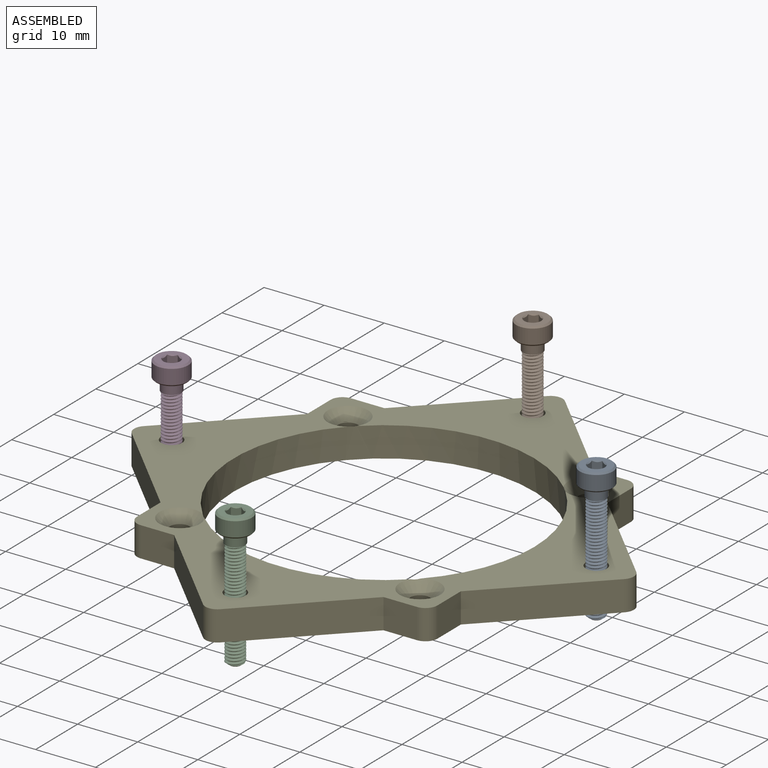
[diagram: assembled view]
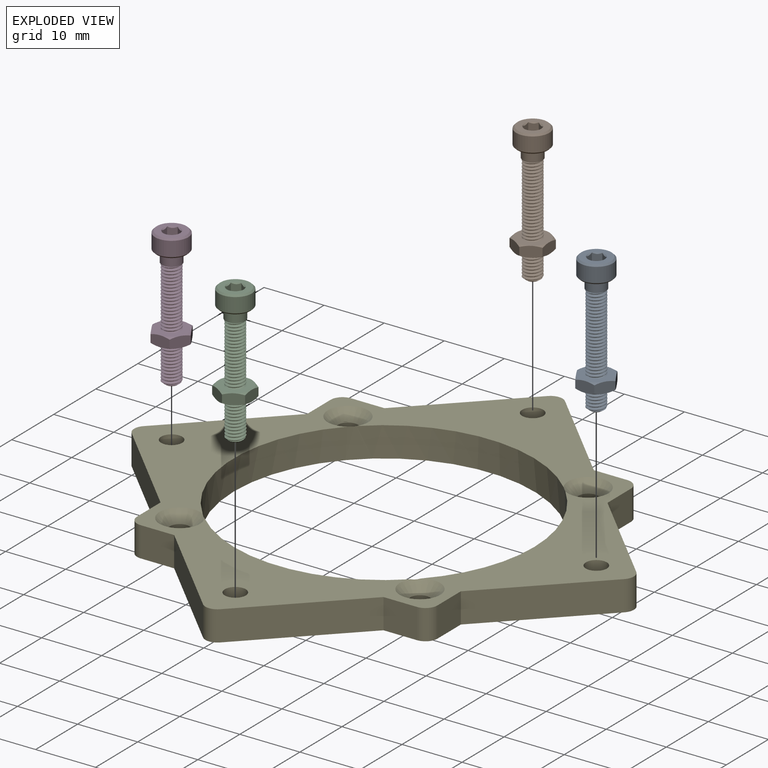
[diagram: exploded view]
GUIDED TOUR — MATED ASSEMBLY WITH SUBASSEMBLIES (Onshape document c32c4f820cddbbeb0b0f44df, AutoMate assembly c32c4f820cddbbeb0b0f44df_1a999598d7298302037ef0e0_8563abc52cc1d183e87581e6_default)

This assembly has 9 component occurrences arranged in 5 top-level units: 1 individual components plus 4 subassemblies (S0, S1, S2, S3). The tour has two levels: first the top level, where each subassembly is treated as one rigid unit; then each subassembly is toured internally in its own section (nesting deeper than one subassembly level is flattened into its subassembly's section).

Components are labeled P0..P8 across the whole record; subassembly units are labeled S0..S3. A mate is a constraint between two units; its type names the relative motion it leaves free:
  CYLINDRICAL — leaves both rotation about and translation along the listed axis free,
  FASTENED — locks the two components together rigidly (no relative motion).
Axis/direction vectors are unit vectors and 'through' points are millimeter coordinates, both in the assembly's world frame.

TOP-LEVEL MATES (between units; each subassembly's internal mates are listed in its own section)
  1. FASTENED "Captive nut": S0 <-> P6, direction (0.000, 0.000, 1.000) through (34.08, 0.39, 13.19) mm
  2. FASTENED "Captive nut 4": S2 <-> P6, direction (0.000, 0.000, 1.000) through (-1.28, -34.97, 13.19) mm
  3. FASTENED "Captive nut 3": S3 <-> P6, direction (0.000, 0.000, 1.000) through (-36.63, 0.39, 13.19) mm
  4. FASTENED "Captive nut 2": S1 <-> P6, direction (0.000, 0.000, 1.000) through (-1.28, 35.75, 13.19) mm

TOP-LEVEL ASSEMBLY ORDER
  1. P6 — the base component [order heuristic]
  2. S0 — core [order heuristic]
  3. S3 — core [order heuristic]
  4. S2 [order verified]
  5. S1 [order verified]
Order-tag legend:
  [order verified] — this step's position reverses a verified removal order: the component was checked to insert without passing through the ones already placed.
  [order heuristic] — the first 3 components form the assembly's core: parts whose collision-free extraction could not be verified, listed in mate-graph order.

Of the 9 component occurrences, 1 carries the full construction recipe — the FeatureScript program that regenerates the part's solid from scratch; the rest are supplied as boundary geometry only. Each toured unit is shown spotlighted twice — assembled, then exploded with a leader line back to its socket (green = recipe-attached component, orange = geometry-only, blue = subassembly unit; the rest desaturated gray).
NOTE — this tour is split across 2 documents so each fits a 32k-token context. This is document 1: the component sections continue in the remaining 1 document, each repeating the header above.
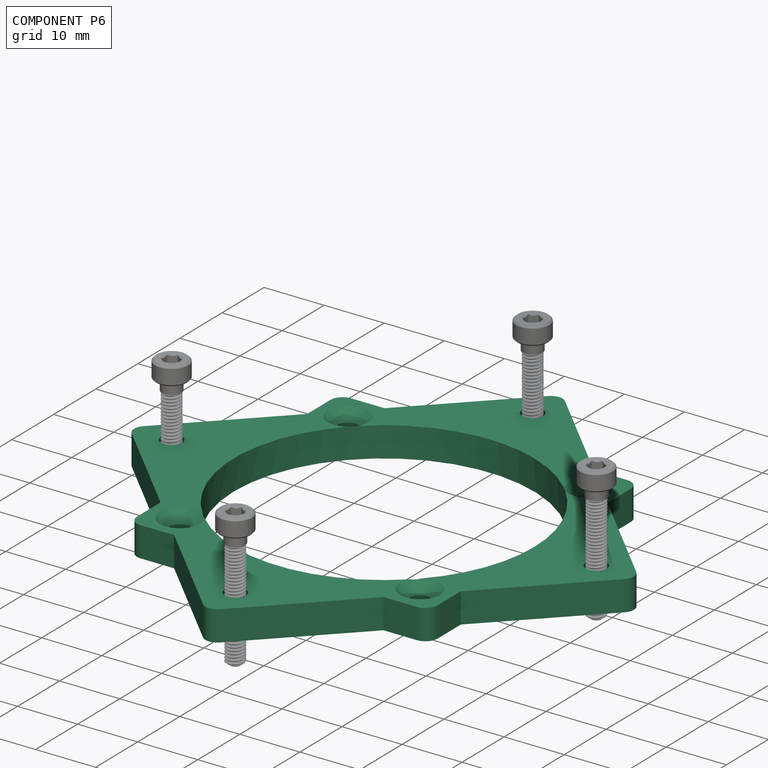
[diagram: component P6 — assembled]
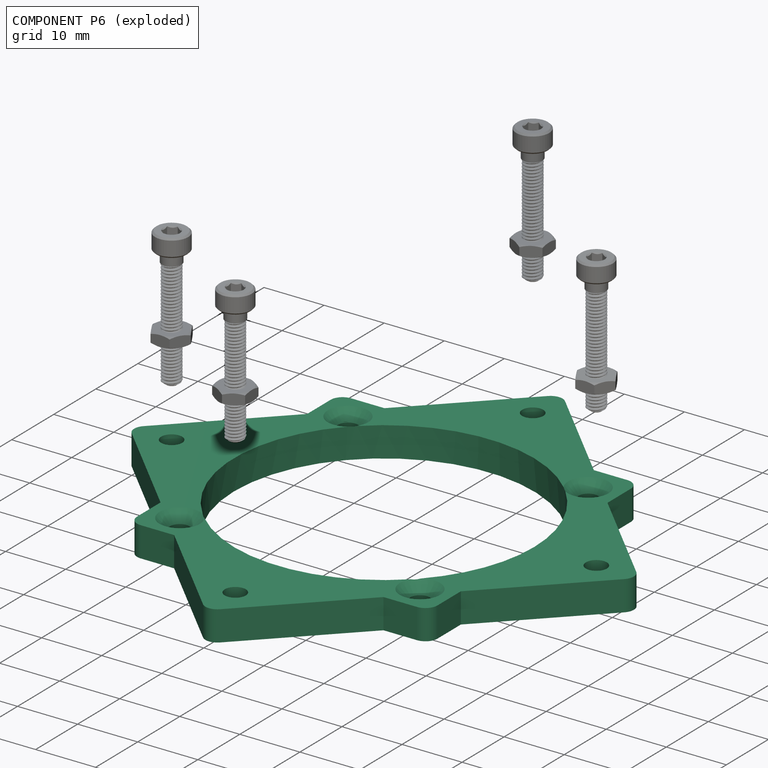
[diagram: component P6 — exploded]
COMPONENT P6 — recipe-attached (CADFS 00194065, mesh-verified: the recipe's output STEP matches this component's geometry to below the mesh-comparison resolution (tessellation chordal tolerance ~0.177 mm)).
Held by: FASTENED mate "Captive nut" to P0; FASTENED mate "Captive nut 4" to P2; FASTENED mate "Captive nut 3" to P5; FASTENED mate "Captive nut 2" to P1.
Construction recipe (FeatureScript — the CAD program that rebuilds this solid; sketch coordinates are in the units given by the * unit suffixes, e.g. mm):

FeatureScript 1540;
import(path : "onshape/std/geometry.fs", version : "1540.0");
import(path : "onshape/std/common.fs", version : "1540.0");
const mm = millimeter;
const VERTEX = EntityType.VERTEX;
const EDGE = EntityType.EDGE;
const FACE = EntityType.FACE;
const BODY = EntityType.BODY;
function v(x, y){return vector(x, y);}
function OD(order){return orderDisambiguation(order);}
function OSD(set){return originalSetDisambiguation(set);}
function TD(topology){return topologyDisambiguation(topology);}
function TDD(query){return trueDependencyDisambiguation(query);}
function sQuery(a, b, c) {return sketchEntityQuery(a, b, c);}

annotation { "Feature Type Name" : "Feature", "Feature Type Description" : "" }
export const myFeature = defineFeature(function(context is Context, id is Id, definition is map)
    precondition{}
    {
        {
            assignVariable(context, id + "F0", {"name" : "plate_thickness", "anyValue" : 5});
        }
        {
            var Q0;
            Q0=qCreatedBy(makeId("Top.planeOp"),FACE);
            var sketch = newSketch(context, id + "F1", { "sketchPlane" : qUnion([Q0])});
            skLineSegment(sketch, "E0.bottom", {"start": v(-41.01, 1.41) * mm, "end": v(-1.41, 41.01) * mm});
            skLineSegment(sketch, "E0.top", {"start": v(1.41, -41.01) * mm, "end": v(41.01, -1.41) * mm});
            skLineSegment(sketch, "E0.left", {"start": v(-41.01, -1.41) * mm, "end": v(-1.41, -41.01) * mm});
            skLineSegment(sketch, "E0.right", {"start": v(1.41, 41.01) * mm, "end": v(41.01, 1.41) * mm});
            skPoint(sketch, "E0.middle", {"position": v(0, 0) * mm});
            skPoint(sketch, "E1.endSnap0", {"position": v(-21.21, 21.21) * mm});
            skPoint(sketch, "E2.endSnap0", {"position": v(21.21, 21.21) * mm});
            skCircle(sketch, "E3", {"center": v(0, -35.36) * mm, "radius": 1.75 * mm});
            skLineSegment(sketch, "E4", {"start": v(0, -42.43) * mm, "end": v(0, 42.43) * mm, "construction": true});
            skLineSegment(sketch, "E5", {"start": v(-42.43, 0) * mm, "end": v(42.43, 0) * mm, "construction": true});
            skPoint(sketch, "E6.visualSharp", {"position": v(0, -42.43) * mm});
            skArc(sketch, "E7.filletArc", {"start": v(-1.41, -41.01) * mm, "mid": v(0, -41.6) * mm, "end": v(1.41, -41.01) * mm});
            skPoint(sketch, "E8.visualSharp", {"position": v(42.43, 0) * mm});
            skArc(sketch, "E8.filletArc", {"start": v(41.01, -1.41) * mm, "mid": v(41.6, 0) * mm, "end": v(41.01, 1.41) * mm});
            skPoint(sketch, "E9.visualSharp", {"position": v(0, 42.43) * mm});
            skArc(sketch, "E9.filletArc", {"start": v(1.41, 41.01) * mm, "mid": v(0, 41.6) * mm, "end": v(-1.41, 41.01) * mm});
            skPoint(sketch, "E10.visualSharp", {"position": v(-42.43, 0) * mm});
            skArc(sketch, "E10.filletArc", {"start": v(-41.01, 1.41) * mm, "mid": v(-41.6, 0) * mm, "end": v(-41.01, -1.41) * mm});
            skLineSegment(sketch, "E11", {"start": v(21.21, -21.21) * mm, "end": v(-21.21, 21.21) * mm, "construction": true});
            skLineSegment(sketch, "E12", {"start": v(21.21, 21.21) * mm, "end": v(-21.21, -21.21) * mm, "construction": true});
            skCircle(sketch, "E13.MirrorC", {"center": v(-35.36, 0) * mm, "radius": 1.75 * mm});
            skCircle(sketch, "E14.MirrorC", {"center": v(0, 35.36) * mm, "radius": 1.75 * mm});
            skCircle(sketch, "E15.MirrorC", {"center": v(35.36, 0) * mm, "radius": 1.75 * mm});
            skLineSegment(sketch, "E16", {"start": v(0, -35.36) * mm, "end": v(-3.54, -38.9) * mm, "construction": true});
            skSolve(sketch);
        }
        {
            var Q0;
            Q0=makeQuery(id+"F1.imprint","IMPRINT",FACE,{"disambiguationData":[TD([[makeQuery(id+"F1.imprint","IMPRINT",EDGE,{"derivedFrom":sQuery(id+"F1.wireOp",EDGE,"E0.bottom")}),-1.0]])]});
            extrude(context, id + "F2", {"entities" : qUnion([Q0]), "depth" : getVariable(context, 'plate_thickness') * mm});
        }
        {
            var Q0;
            Q0=qCreatedBy(makeId("Top.planeOp"),FACE);
            var sketch = newSketch(context, id + "F3", { "sketchPlane" : qUnion([Q0])});
            skLineSegment(sketch, "E17.bottom", {"start": v(-23, 25) * mm, "end": v(23, 25) * mm});
            skLineSegment(sketch, "E17.top", {"start": v(-23, -25) * mm, "end": v(23, -25) * mm});
            skLineSegment(sketch, "E17.left", {"start": v(-25, 23) * mm, "end": v(-25, -23) * mm});
            skLineSegment(sketch, "E17.right", {"start": v(25, 23) * mm, "end": v(25, -23) * mm});
            skPoint(sketch, "E17.middle", {"position": v(0, 0) * mm});
            skPoint(sketch, "E18.endSnap0", {"position": v(0, 25) * mm});
            skPoint(sketch, "E19.endSnap0", {"position": v(25, 0) * mm});
            skCircle(sketch, "E20", {"center": v(-20, -20) * mm, "radius": 1.75 * mm});
            skLineSegment(sketch, "E21", {"start": v(-25, -25) * mm, "end": v(25, 25) * mm, "construction": true});
            skLineSegment(sketch, "E22", {"start": v(-25, 25) * mm, "end": v(25, -25) * mm, "construction": true});
            skPoint(sketch, "E23.visualSharp", {"position": v(-25, -25) * mm});
            skArc(sketch, "E24.filletArc", {"start": v(-25, -23) * mm, "mid": v(-24.41, -24.41) * mm, "end": v(-23, -25) * mm});
            skPoint(sketch, "E25.visualSharp", {"position": v(25, -25) * mm});
            skArc(sketch, "E25.filletArc", {"start": v(23, -25) * mm, "mid": v(24.41, -24.41) * mm, "end": v(25, -23) * mm});
            skPoint(sketch, "E26.visualSharp", {"position": v(25, 25) * mm});
            skArc(sketch, "E26.filletArc", {"start": v(25, 23) * mm, "mid": v(24.41, 24.41) * mm, "end": v(23, 25) * mm});
            skPoint(sketch, "E27.visualSharp", {"position": v(-25, 25) * mm});
            skArc(sketch, "E27.filletArc", {"start": v(-23, 25) * mm, "mid": v(-24.41, 24.41) * mm, "end": v(-25, 23) * mm});
            skCircle(sketch, "E28.MirrorC", {"center": v(20, -20) * mm, "radius": 1.75 * mm});
            skCircle(sketch, "E29.MirrorC", {"center": v(20, 20) * mm, "radius": 1.75 * mm});
            skCircle(sketch, "E30.MirrorC", {"center": v(-20, 20) * mm, "radius": 1.75 * mm});
            skSolve(sketch);
        }
        {
            var Q0;
            Q0 = qSketchRegion(id + "F3", true);
            extrude(context, id + "F4", {"entities" : qUnion([Q0]), "depth" : getVariable(context, 'plate_thickness') * mm});
        }
        {
            var Q0;
            Q0=makeQuery(id+"F4.opExtrude","SWEPT_BODY",BODY,{"disambiguationData":[OSD([sQuery(id+"F3.wireOp",EDGE,"E17.bottom"),sQuery(id+"F3.wireOp",EDGE,"E17.top"),sQuery(id+"F3.wireOp",EDGE,"E17.left"),sQuery(id+"F3.wireOp",EDGE,"E17.right"),sQuery(id+"F3.wireOp",EDGE,"E20"),sQuery(id+"F3.wireOp",EDGE,"56bc1b40-8556-4916-879a-06b11f969edb"),sQuery(id+"F3.wireOp",EDGE,"E24.filletArc"),sQuery(id+"F3.wireOp",EDGE,"E25.filletArc"),sQuery(id+"F3.wireOp",EDGE,"E26.filletArc"),sQuery(id+"F3.wireOp",EDGE,"E27.filletArc"),sQuery(id+"F3.wireOp",EDGE,"E28.MirrorC"),sQuery(id+"F3.wireOp",EDGE,"E29.MirrorC"),sQuery(id+"F3.wireOp",EDGE,"E30.MirrorC")])]});
            var Q1;
            Q1=makeQuery(id+"F2.opExtrude","SWEPT_BODY",BODY,{"disambiguationData":[OSD([sQuery(id+"F1.wireOp",EDGE,"E0.bottom"),sQuery(id+"F1.wireOp",EDGE,"E0.top"),sQuery(id+"F1.wireOp",EDGE,"E0.left"),sQuery(id+"F1.wireOp",EDGE,"E0.right"),sQuery(id+"F1.wireOp",EDGE,"E3"),sQuery(id+"F1.wireOp",EDGE,"ej8KbIMe-PWYS-cAjW-iybb-MyuX8oysgDMn"),sQuery(id+"F1.wireOp",EDGE,"E7.filletArc"),sQuery(id+"F1.wireOp",EDGE,"E8.filletArc"),sQuery(id+"F1.wireOp",EDGE,"E9.filletArc"),sQuery(id+"F1.wireOp",EDGE,"E10.filletArc"),sQuery(id+"F1.wireOp",EDGE,"1b3d5ee1-3fd6-4c55-bd02-d0c0132213120.MirrorC"),sQuery(id+"F1.wireOp",EDGE,"01bf5ec6-f76a-4ebe-8428-037c4d78945e0.MirrorC"),sQuery(id+"F1.wireOp",EDGE,"01bf5ec6-f76a-4ebe-8428-037c4d78945e1.MirrorC")])]});
            booleanBodies(context, id + "F5", {"operationType" : BooleanOperationType.UNION, "tools" : qUnion([Q0, Q1])});
        }
        {
            var Q0;
            Q0=makeQuery(id+"F5.opBoolean","MERGE",FACE,{"derivedFrom":[makeQuery(id+"F2.opExtrude","CAP_FACE",FACE,{"disambiguationData":[OSD([sQuery(id+"F1.wireOp",EDGE,"E0.bottom"),sQuery(id+"F1.wireOp",EDGE,"E0.top"),sQuery(id+"F1.wireOp",EDGE,"E0.left"),sQuery(id+"F1.wireOp",EDGE,"E0.right"),sQuery(id+"F1.wireOp",EDGE,"E3"),sQuery(id+"F1.wireOp",EDGE,"E7.filletArc"),sQuery(id+"F1.wireOp",EDGE,"E8.filletArc"),sQuery(id+"F1.wireOp",EDGE,"E9.filletArc"),sQuery(id+"F1.wireOp",EDGE,"E10.filletArc"),sQuery(id+"F1.wireOp",EDGE,"E13.MirrorC"),sQuery(id+"F1.wireOp",EDGE,"E14.MirrorC"),sQuery(id+"F1.wireOp",EDGE,"E15.MirrorC")])],"isStart":false}),makeQuery(id+"F4.opExtrude","CAP_FACE",FACE,{"disambiguationData":[OSD([sQuery(id+"F3.wireOp",EDGE,"E17.bottom"),sQuery(id+"F3.wireOp",EDGE,"E17.top"),sQuery(id+"F3.wireOp",EDGE,"E17.left"),sQuery(id+"F3.wireOp",EDGE,"E17.right"),sQuery(id+"F3.wireOp",EDGE,"E20"),sQuery(id+"F3.wireOp",EDGE,"E24.filletArc"),sQuery(id+"F3.wireOp",EDGE,"E25.filletArc"),sQuery(id+"F3.wireOp",EDGE,"E26.filletArc"),sQuery(id+"F3.wireOp",EDGE,"E27.filletArc"),sQuery(id+"F3.wireOp",EDGE,"E28.MirrorC"),sQuery(id+"F3.wireOp",EDGE,"E29.MirrorC"),sQuery(id+"F3.wireOp",EDGE,"E30.MirrorC")])],"isStart":false})]});
            var sketch = newSketch(context, id + "F6", { "sketchPlane" : qUnion([Q0])});
            skCircle(sketch, "E31", {"center": v(0, 0) * mm, "radius": 25 * mm});
            skSolve(sketch);
        }
        {
            var Q0;
            Q0=makeQuery(id+"F6.imprint","IMPRINT",FACE,{"disambiguationData":[TD([[makeQuery(id+"F6.imprint","IMPRINT",EDGE,{"derivedFrom":sQuery(id+"F6.wireOp",EDGE,"E31")}),1.0]])]});
            extrude(context, id + "F7", {"entities" : qUnion([Q0]), "operationType" : NewBodyOperationType.REMOVE, "endBound" : BoundingType.THROUGH_ALL, "oppositeDirection" : true, "depth" : 25 * mm});
        }
        {
            var Q0;
            Q0=makeQuery(id+"F4.opExtrude","SWEPT_BODY",BODY,{"disambiguationData":[OSD([sQuery(id+"F3.wireOp",EDGE,"E17.bottom"),sQuery(id+"F3.wireOp",EDGE,"E17.top"),sQuery(id+"F3.wireOp",EDGE,"E17.left"),sQuery(id+"F3.wireOp",EDGE,"E17.right"),sQuery(id+"F3.wireOp",EDGE,"E20"),sQuery(id+"F3.wireOp",EDGE,"56bc1b40-8556-4916-879a-06b11f969edb"),sQuery(id+"F3.wireOp",EDGE,"E24.filletArc"),sQuery(id+"F3.wireOp",EDGE,"E25.filletArc"),sQuery(id+"F3.wireOp",EDGE,"E26.filletArc"),sQuery(id+"F3.wireOp",EDGE,"E27.filletArc"),sQuery(id+"F3.wireOp",EDGE,"E28.MirrorC"),sQuery(id+"F3.wireOp",EDGE,"E29.MirrorC"),sQuery(id+"F3.wireOp",EDGE,"E30.MirrorC")])]});
            transform(context, id + "F8", {"entities" : qUnion([Q0]), "transformType" : TransformType.TRANSLATION_3D, "dx" : 0 * mm, "dy" : 0 * mm, "dz" : -5 * mm, "makeCopy" : false});
        }
        {
            var Q0;
            Q0=sQuery(id+"F3.wireOp",VERTEX,"E20.center");
            var Q1;
            Q1=sQuery(id+"F3.wireOp",VERTEX,"E29.MirrorC.center");
            var Q2;
            Q2=sQuery(id+"F3.wireOp",VERTEX,"E28.MirrorC.center");
            var Q3;
            Q3=sQuery(id+"F3.wireOp",VERTEX,"E30.MirrorC.center");
            var Q4;
            Q4=makeQuery(id+"F4.opExtrude","SWEPT_BODY",BODY,{"disambiguationData":[OSD([sQuery(id+"F3.wireOp",EDGE,"E17.bottom"),sQuery(id+"F3.wireOp",EDGE,"E17.top"),sQuery(id+"F3.wireOp",EDGE,"E17.left"),sQuery(id+"F3.wireOp",EDGE,"E17.right"),sQuery(id+"F3.wireOp",EDGE,"E20"),sQuery(id+"F3.wireOp",EDGE,"56bc1b40-8556-4916-879a-06b11f969edb"),sQuery(id+"F3.wireOp",EDGE,"E24.filletArc"),sQuery(id+"F3.wireOp",EDGE,"E25.filletArc"),sQuery(id+"F3.wireOp",EDGE,"E26.filletArc"),sQuery(id+"F3.wireOp",EDGE,"E27.filletArc"),sQuery(id+"F3.wireOp",EDGE,"E28.MirrorC"),sQuery(id+"F3.wireOp",EDGE,"E29.MirrorC"),sQuery(id+"F3.wireOp",EDGE,"E30.MirrorC")])]});
            hole(context, id + "F9", {"style" : HoleStyle.C_SINK, "endStyle" : HoleEndStyle.THROUGH, "standardTappedOrClearance" : lookupTablePath({ "standard" : "ISO", "fit" : "Normal", "size" : "M3", "type" : "Clearance" }), "standardBlindInLast" : lookupTablePath({ "fit" : "Standard", "standard" : "ISO", "size" : "M3", "type" : "Clearance" }), "holeDiameter" : 3.3 * mm, "cSinkDiameter" : 6.72 * mm, "cSinkAngle" : 90 * degree, "locations" : qUnion([Q0, Q1, Q2, Q3]), "scope" : qUnion([Q4]), "isTappedThrough" : true});
        }
        {
            var Q0;
            Q0=makeQuery(id+"F5.opBoolean","MERGE",FACE,{"derivedFrom":[makeQuery(id+"F2.opExtrude","CAP_FACE",FACE,{"disambiguationData":[OSD([sQuery(id+"F1.wireOp",EDGE,"E0.bottom"),sQuery(id+"F1.wireOp",EDGE,"E0.top"),sQuery(id+"F1.wireOp",EDGE,"E0.left"),sQuery(id+"F1.wireOp",EDGE,"E0.right"),sQuery(id+"F1.wireOp",EDGE,"E3"),sQuery(id+"F1.wireOp",EDGE,"ej8KbIMe-PWYS-cAjW-iybb-MyuX8oysgDMn"),sQuery(id+"F1.wireOp",EDGE,"E7.filletArc"),sQuery(id+"F1.wireOp",EDGE,"E8.filletArc"),sQuery(id+"F1.wireOp",EDGE,"E9.filletArc"),sQuery(id+"F1.wireOp",EDGE,"E10.filletArc"),sQuery(id+"F1.wireOp",EDGE,"1b3d5ee1-3fd6-4c55-bd02-d0c0132213120.MirrorC"),sQuery(id+"F1.wireOp",EDGE,"01bf5ec6-f76a-4ebe-8428-037c4d78945e0.MirrorC"),sQuery(id+"F1.wireOp",EDGE,"01bf5ec6-f76a-4ebe-8428-037c4d78945e1.MirrorC")])],"isStart":true}),makeQuery(id+"F4.opExtrude","CAP_FACE",FACE,{"disambiguationData":[OSD([sQuery(id+"F3.wireOp",EDGE,"E17.bottom"),sQuery(id+"F3.wireOp",EDGE,"E17.top"),sQuery(id+"F3.wireOp",EDGE,"E17.left"),sQuery(id+"F3.wireOp",EDGE,"E17.right"),sQuery(id+"F3.wireOp",EDGE,"E20"),sQuery(id+"F3.wireOp",EDGE,"56bc1b40-8556-4916-879a-06b11f969edb"),sQuery(id+"F3.wireOp",EDGE,"E24.filletArc"),sQuery(id+"F3.wireOp",EDGE,"E25.filletArc"),sQuery(id+"F3.wireOp",EDGE,"E26.filletArc"),sQuery(id+"F3.wireOp",EDGE,"E27.filletArc"),sQuery(id+"F3.wireOp",EDGE,"E28.MirrorC"),sQuery(id+"F3.wireOp",EDGE,"E29.MirrorC"),sQuery(id+"F3.wireOp",EDGE,"E30.MirrorC")])],"isStart":true})]});
            var sketch = newSketch(context, id + "F10", { "sketchPlane" : qUnion([Q0])});
            skCircle(sketch, "E32.cCircle", {"center": v(35.36, 0) * mm, "radius": 3.38 * mm, "construction": true});
            skLineSegment(sketch, "E32.0", {"start": v(33.67, 2.92) * mm, "end": v(37.04, 2.92) * mm});
            skLineSegment(sketch, "E32.1", {"start": v(37.04, 2.92) * mm, "end": v(38.73, 0) * mm});
            skLineSegment(sketch, "E32.2", {"start": v(38.73, 0) * mm, "end": v(37.04, -2.92) * mm});
            skLineSegment(sketch, "E32.3", {"start": v(37.04, -2.92) * mm, "end": v(33.67, -2.92) * mm});
            skLineSegment(sketch, "E32.4", {"start": v(33.67, -2.92) * mm, "end": v(31.98, 0) * mm});
            skLineSegment(sketch, "E32.5", {"start": v(31.98, 0) * mm, "end": v(33.67, 2.92) * mm});
            skLineSegment(sketch, "E33.MirrorCS", {"start": v(2.92, -37.04) * mm, "end": v(2.92, -33.67) * mm});
            skCircle(sketch, "E34.MirrorC", {"center": v(0, -35.36) * mm, "radius": 3.38 * mm, "construction": true});
            skLineSegment(sketch, "E35.MirrorCS", {"start": v(-2.92, -33.67) * mm, "end": v(-2.92, -37.04) * mm});
            skLineSegment(sketch, "E36.MirrorCS", {"start": v(-2.92, -37.04) * mm, "end": v(0, -38.73) * mm});
            skLineSegment(sketch, "E37.MirrorCS", {"start": v(0, -38.73) * mm, "end": v(2.92, -37.04) * mm});
            skLineSegment(sketch, "E38.MirrorCS", {"start": v(2.92, -33.67) * mm, "end": v(0, -31.98) * mm});
            skLineSegment(sketch, "E39.MirrorCS", {"start": v(0, -31.98) * mm, "end": v(-2.92, -33.67) * mm});
            skLineSegment(sketch, "E40.MirrorCS", {"start": v(-37.04, -2.92) * mm, "end": v(-38.73, 0) * mm});
            skLineSegment(sketch, "E41.MirrorCS", {"start": v(-37.04, 2.92) * mm, "end": v(-33.67, 2.92) * mm});
            skLineSegment(sketch, "E42.MirrorCS", {"start": v(0, 31.98) * mm, "end": v(2.92, 33.67) * mm});
            skLineSegment(sketch, "E43.MirrorCS", {"start": v(2.92, 33.67) * mm, "end": v(2.92, 37.04) * mm});
            skLineSegment(sketch, "E44.MirrorCS", {"start": v(-31.98, 0) * mm, "end": v(-33.67, -2.92) * mm});
            skLineSegment(sketch, "E45.MirrorCS", {"start": v(0, 38.73) * mm, "end": v(-2.92, 37.04) * mm});
            skLineSegment(sketch, "E46.MirrorCS", {"start": v(-38.73, 0) * mm, "end": v(-37.04, 2.92) * mm});
            skLineSegment(sketch, "E47.MirrorCS", {"start": v(2.92, 37.04) * mm, "end": v(0, 38.73) * mm});
            skLineSegment(sketch, "E48.MirrorCS", {"start": v(-2.92, 37.04) * mm, "end": v(-2.92, 33.67) * mm});
            skLineSegment(sketch, "E49.MirrorCS", {"start": v(-33.67, 2.92) * mm, "end": v(-31.98, 0) * mm});
            skCircle(sketch, "E50.MirrorC", {"center": v(-35.36, 0) * mm, "radius": 3.38 * mm, "construction": true});
            skCircle(sketch, "E51.MirrorC", {"center": v(0, 35.36) * mm, "radius": 3.38 * mm, "construction": true});
            skLineSegment(sketch, "E52.MirrorCS", {"start": v(-2.92, 33.67) * mm, "end": v(0, 31.98) * mm});
            skLineSegment(sketch, "E53.MirrorCS", {"start": v(-33.67, -2.92) * mm, "end": v(-37.04, -2.92) * mm});
            skSolve(sketch);
        }
        {
            var Q0;
            {var subQ14=sQuery(id+"F10.wireOp",EDGE,"E32.0");Q0=makeQuery(id+"F10.imprint","IMPRINT",FACE,{"disambiguationData":[TD([[makeQuery(id+"F10.imprint","IMPRINT",EDGE,{"derivedFrom":subQ14}),-1.0]])]});}
            var Q1;
            Q1=makeQuery(id+"F10.imprint","IMPRINT",FACE,{"disambiguationData":[TD([[makeQuery(id+"F10.imprint","IMPRINT",EDGE,{"derivedFrom":sQuery(id+"F10.wireOp",EDGE,"E42.MirrorCS")}),1.0]])]});
            var Q2;
            {var subQ21=sQuery(id+"F10.wireOp",EDGE,"E35.MirrorCS");Q2=makeQuery(id+"F10.imprint","IMPRINT",FACE,{"disambiguationData":[TD([[makeQuery(id+"F10.imprint","IMPRINT",EDGE,{"derivedFrom":subQ21}),1.0]])]});}
            var Q3;
            Q3=makeQuery(id+"F10.imprint","IMPRINT",FACE,{"disambiguationData":[TD([[makeQuery(id+"F10.imprint","IMPRINT",EDGE,{"derivedFrom":sQuery(id+"F10.wireOp",EDGE,"E44.MirrorCS")}),-1.0]])]});
            extrude(context, id + "F11", {"entities" : qUnion([Q0, Q1, Q2, Q3]), "operationType" : NewBodyOperationType.REMOVE, "oppositeDirection" : true, "depth" : 2.5 * mm});
        }
    });
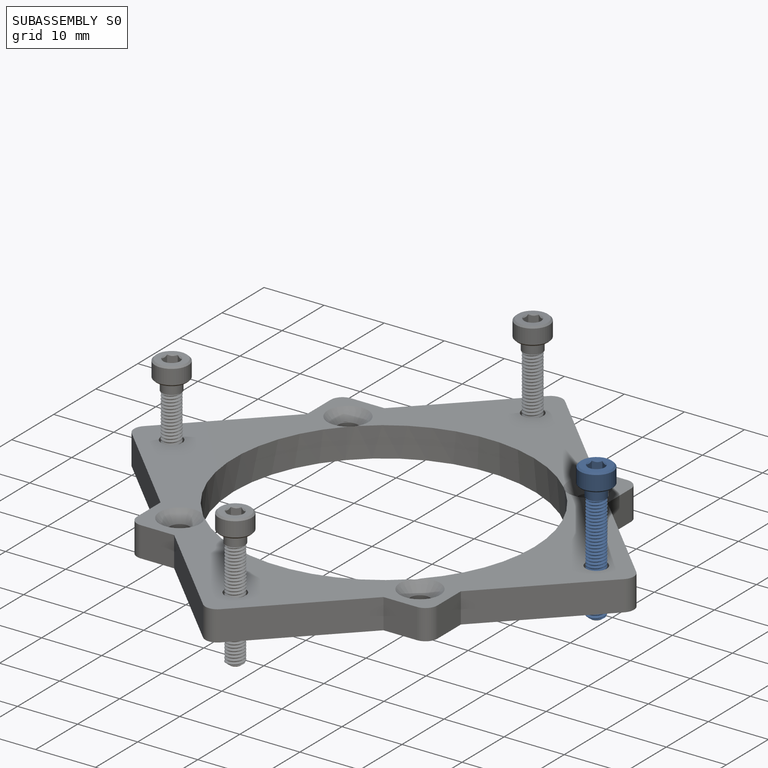
[diagram: subassembly S0 — assembled]
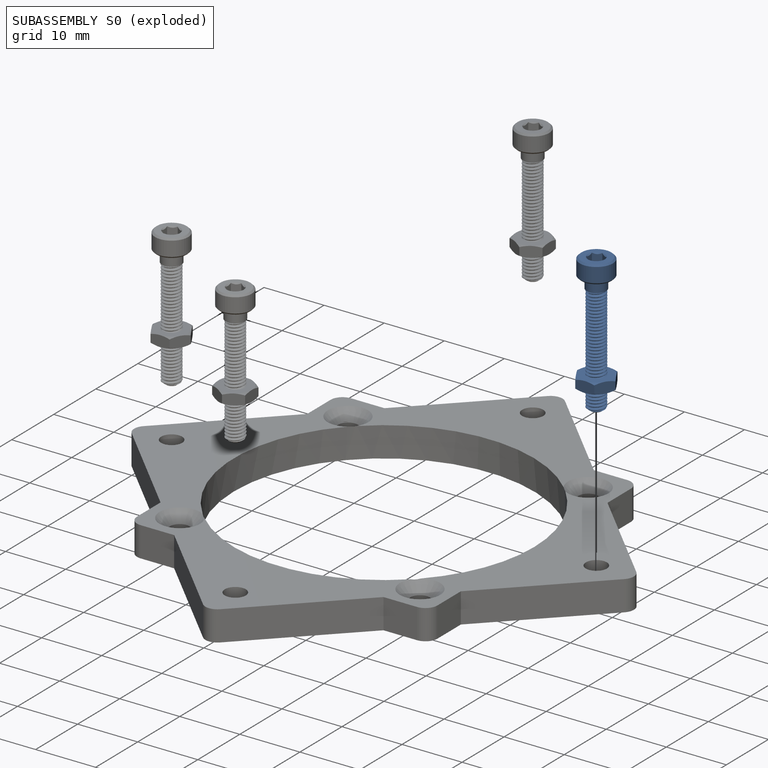
[diagram: subassembly S0 — exploded]
SUBASSEMBLY S0 — 2 components (P0, P4), of which 0 recipe-attached; toured below.
Held by: FASTENED mate "Captive nut" to P6.
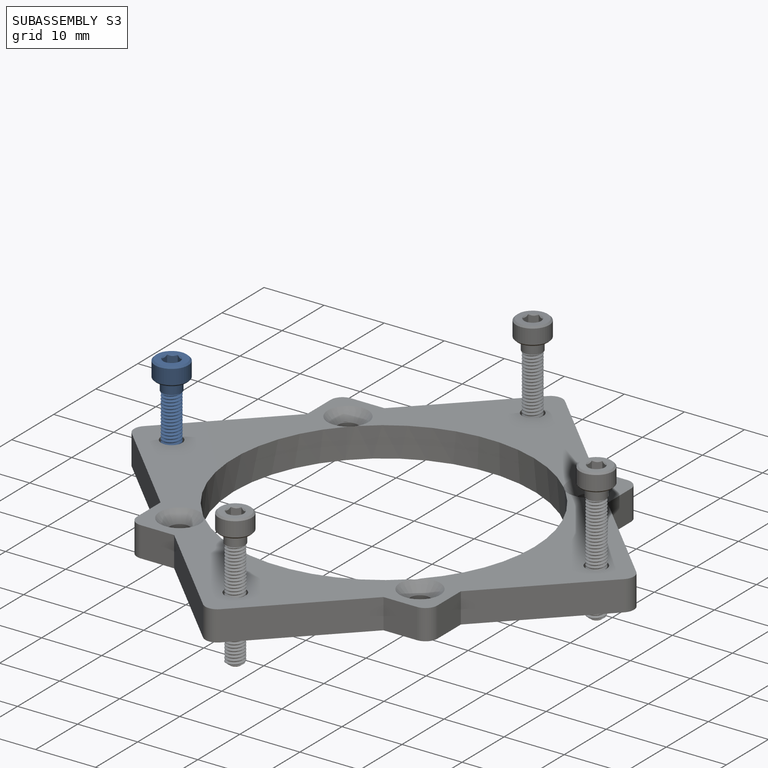
[diagram: subassembly S3 — assembled]
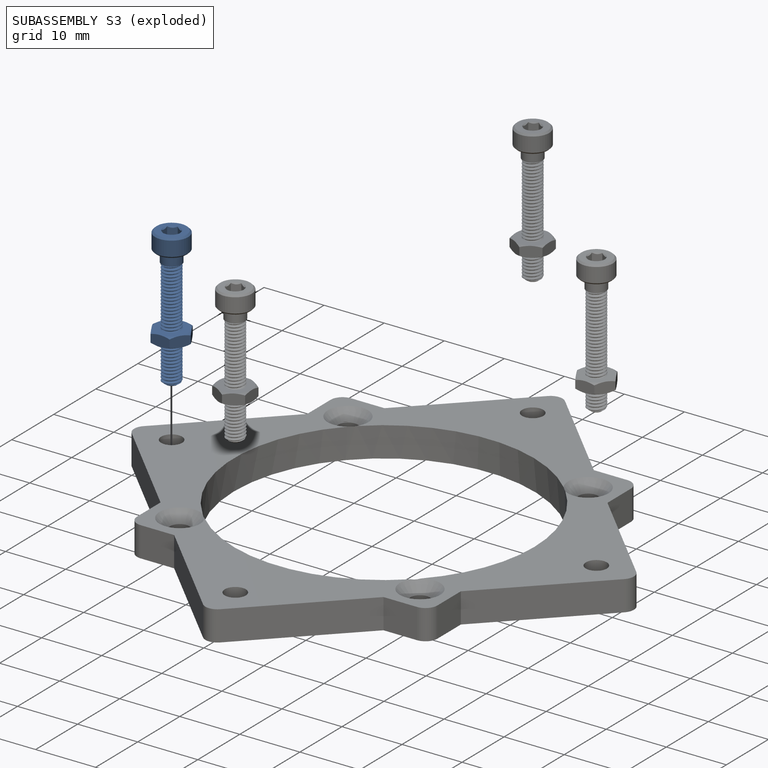
[diagram: subassembly S3 — exploded]
SUBASSEMBLY S3 — 2 components (P5, P8), of which 0 recipe-attached; toured below.
Held by: FASTENED mate "Captive nut 3" to P6.
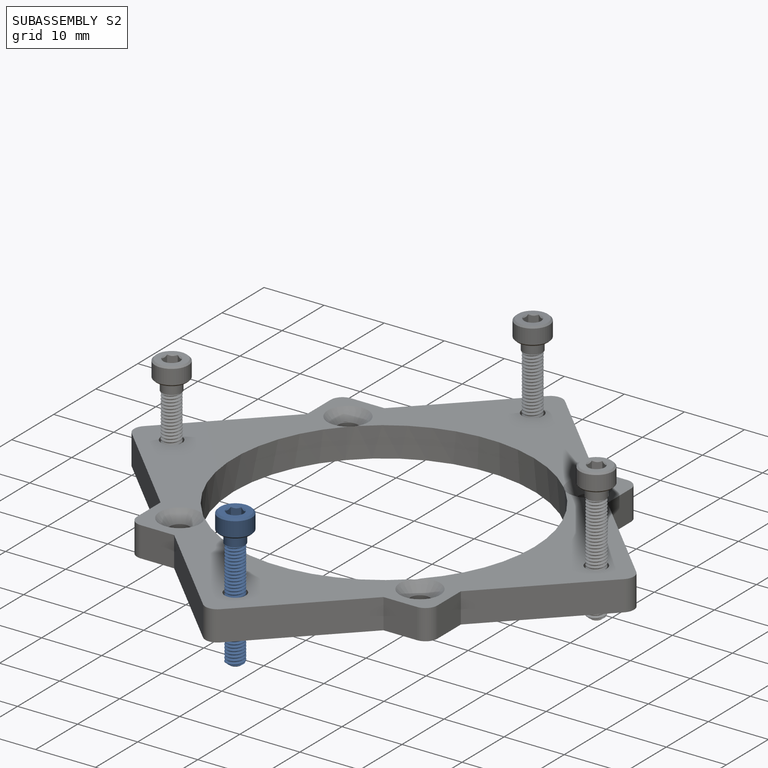
[diagram: subassembly S2 — assembled]
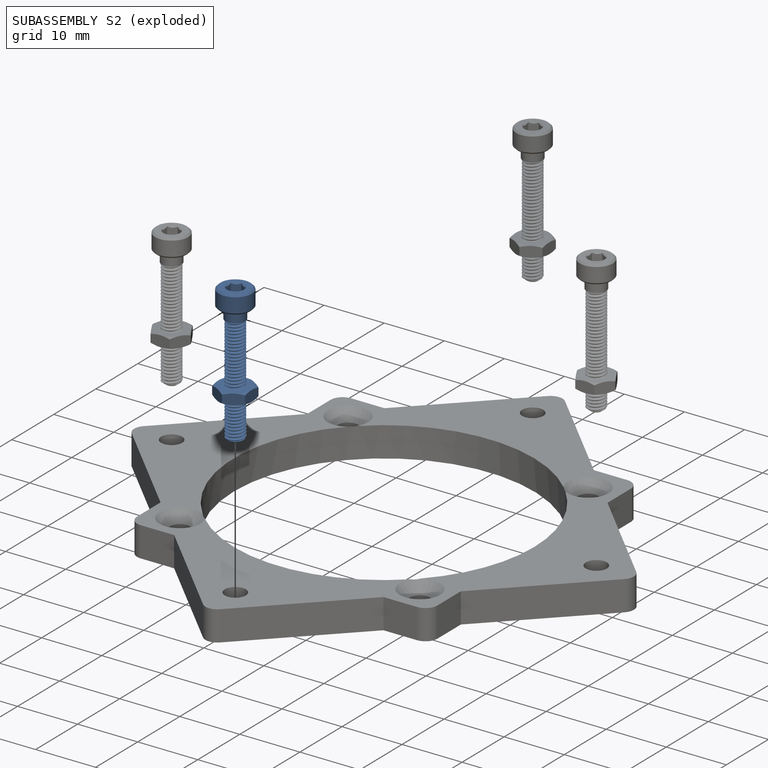
[diagram: subassembly S2 — exploded]
SUBASSEMBLY S2 — 2 components (P2, P7), of which 0 recipe-attached; toured below.
Held by: FASTENED mate "Captive nut 4" to P6.
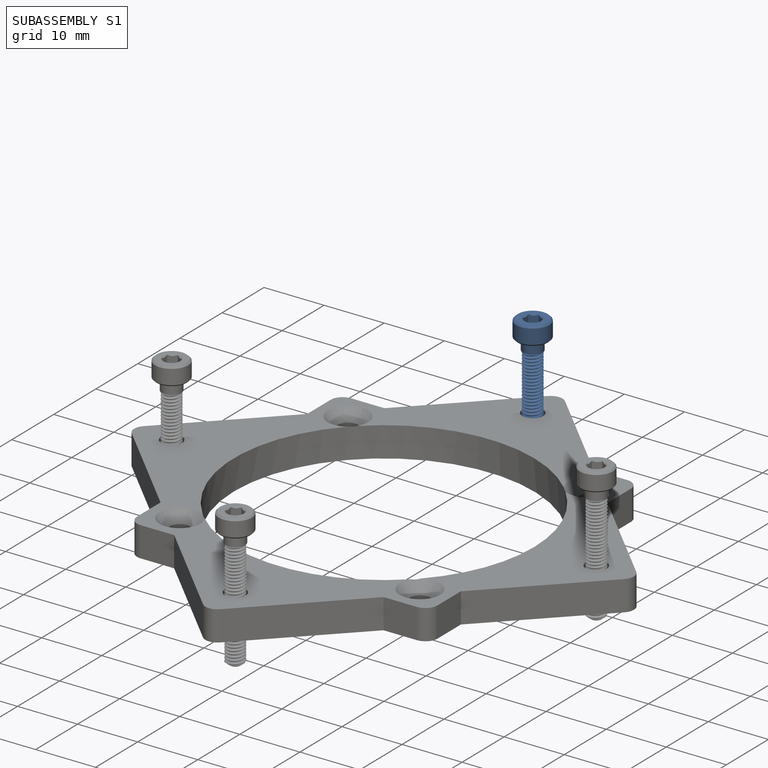
[diagram: subassembly S1 — assembled]
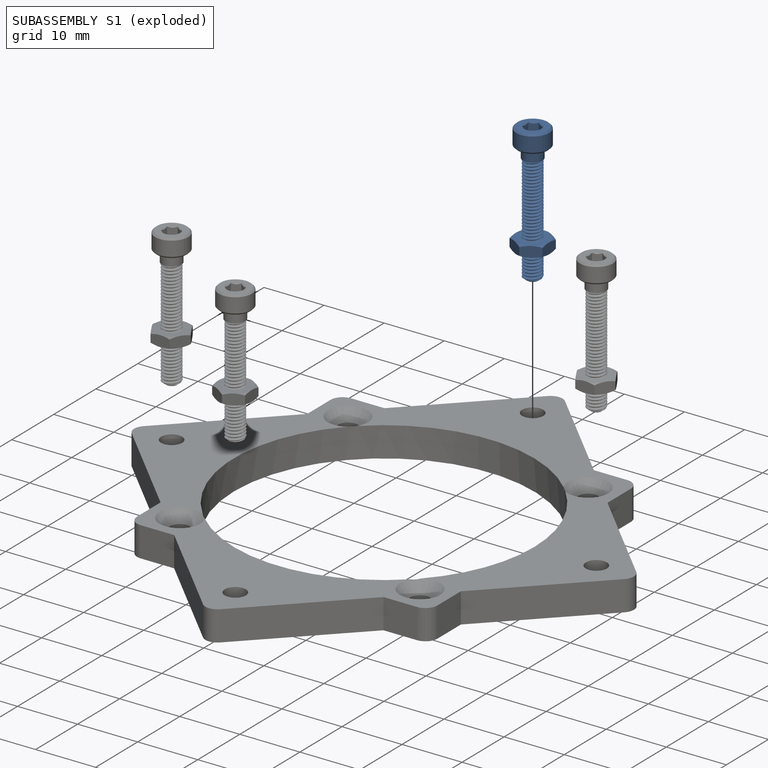
[diagram: subassembly S1 — exploded]
SUBASSEMBLY S1 — 2 components (P1, P3), of which 0 recipe-attached; toured below.
Held by: FASTENED mate "Captive nut 2" to P6.
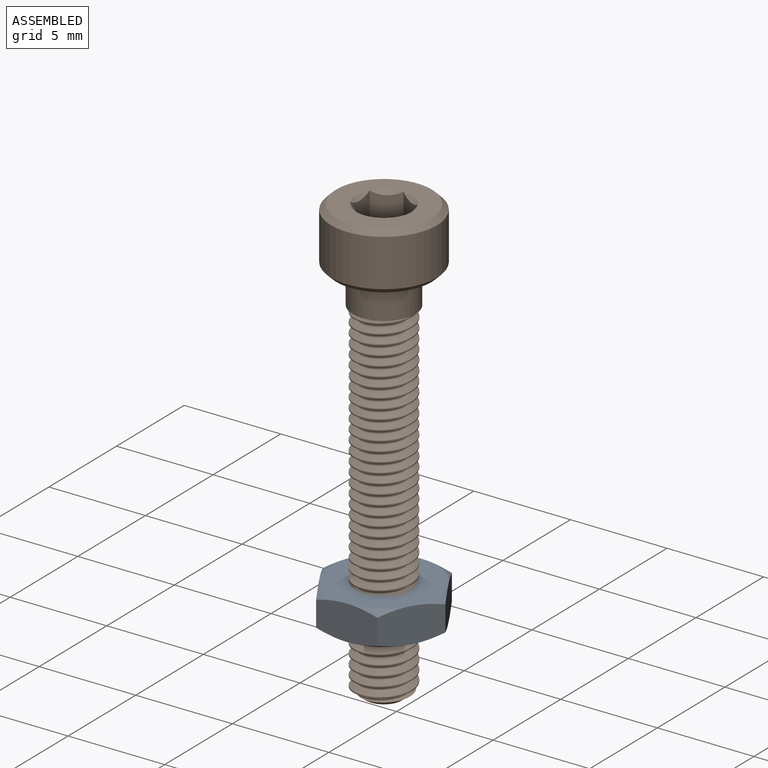
[diagram: subassembly S0 — assembled view]
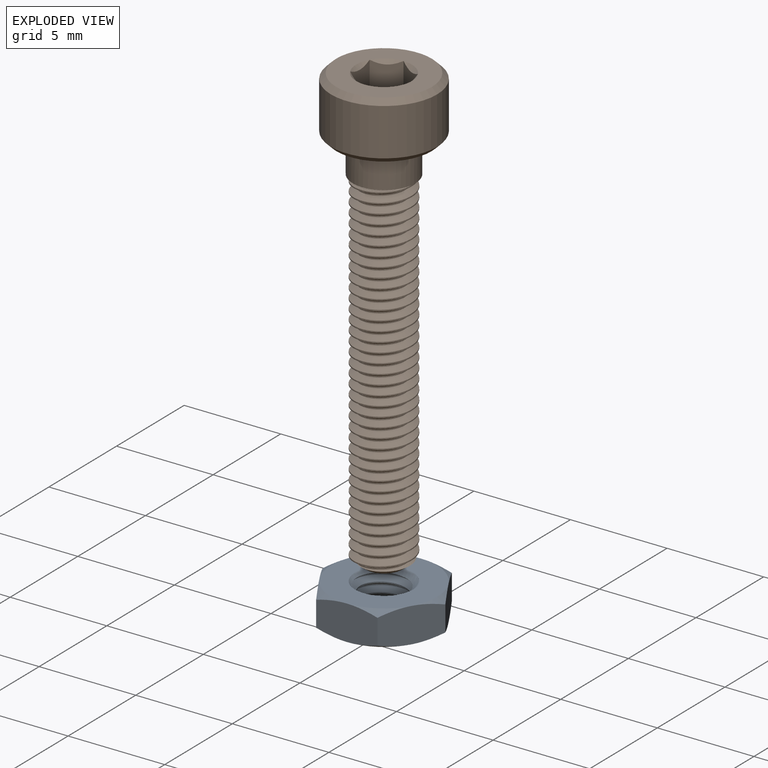
[diagram: subassembly S0 — exploded view]
SUBASSEMBLY S0 TOUR — 2 components, shown here in isolation at its own camera.

INTERNAL MATES
  1. CYLINDRICAL "Nut and Screw": P0 <-> P4, axis (0.000, 0.000, 1.000) through (34.08, 0.39, 13.19) mm
  2. CYLINDRICAL "Nut and Screw": P0 <-> P4, axis (0.000, 0.000, 1.000) through (34.08, 0.39, 13.19) mm

ASSEMBLY ORDER (within the subassembly)
  1. P0 — the base component [order heuristic]
  2. P4 [order heuristic]
Order-tag legend:
  [order heuristic] — this assembly is geometrically interlocked (no collision-free removal order exists), so components are listed in mate-graph order; insertion feasibility is not verified.
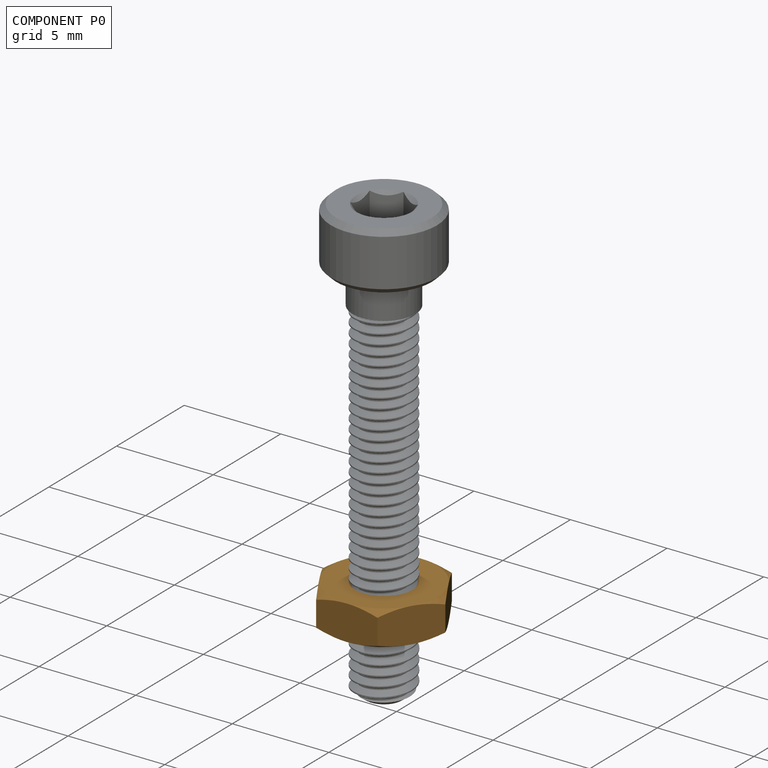
[diagram: component P0 — assembled]
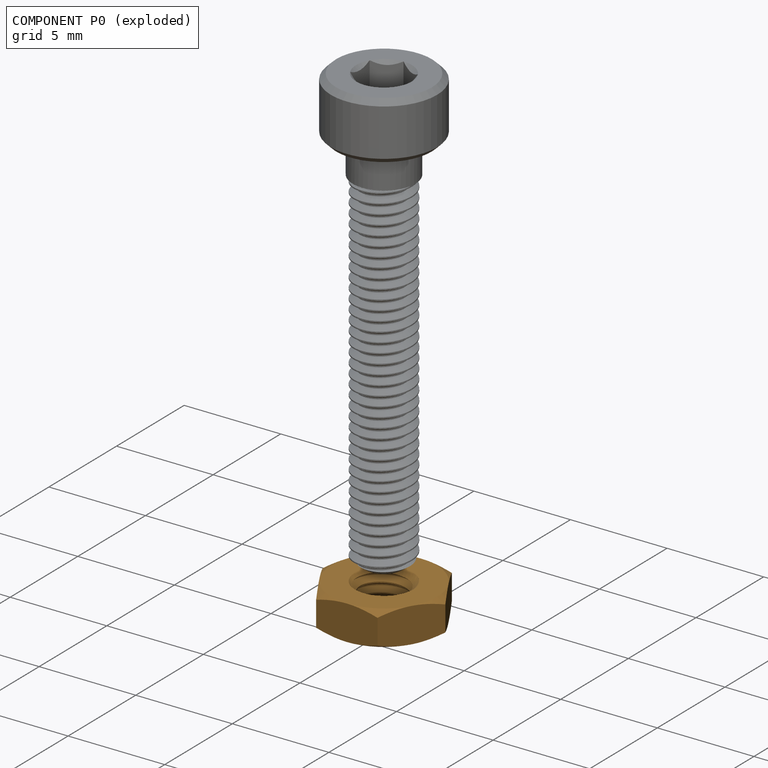
[diagram: component P0 — exploded]
COMPONENT P0 — geometry summary (no construction recipe available for this part):
  bounding box: 6.6 x 6.6 x 2.5 mm
  B-rep topology: 1 solid, 26 faces, 112 edges
  volume: 39 mm^3 (36% of its bounding box)
Held by: CYLINDRICAL mate "Nut and Screw" to P4; CYLINDRICAL mate "Nut and Screw" to P4.
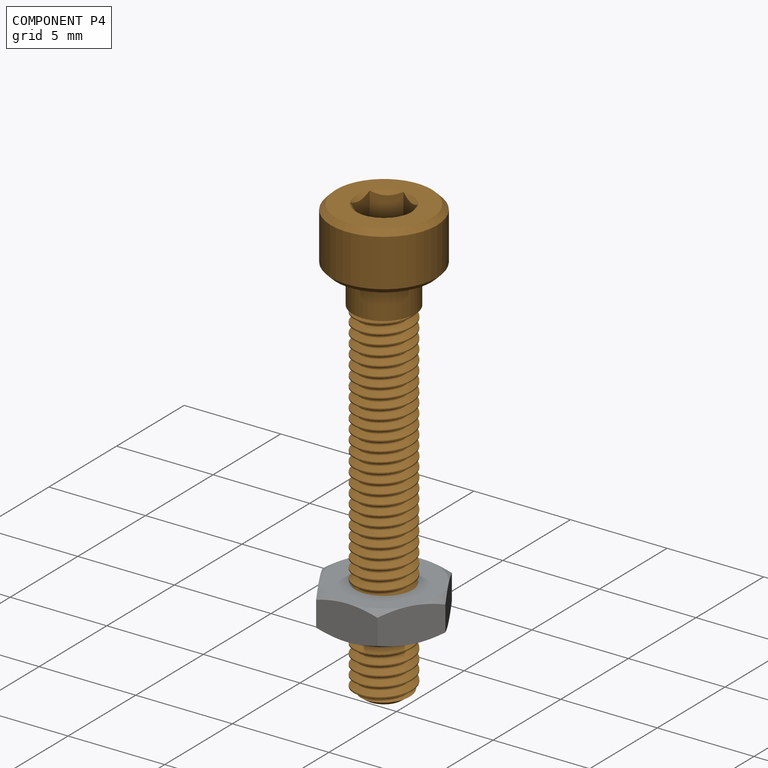
[diagram: component P4 — assembled]
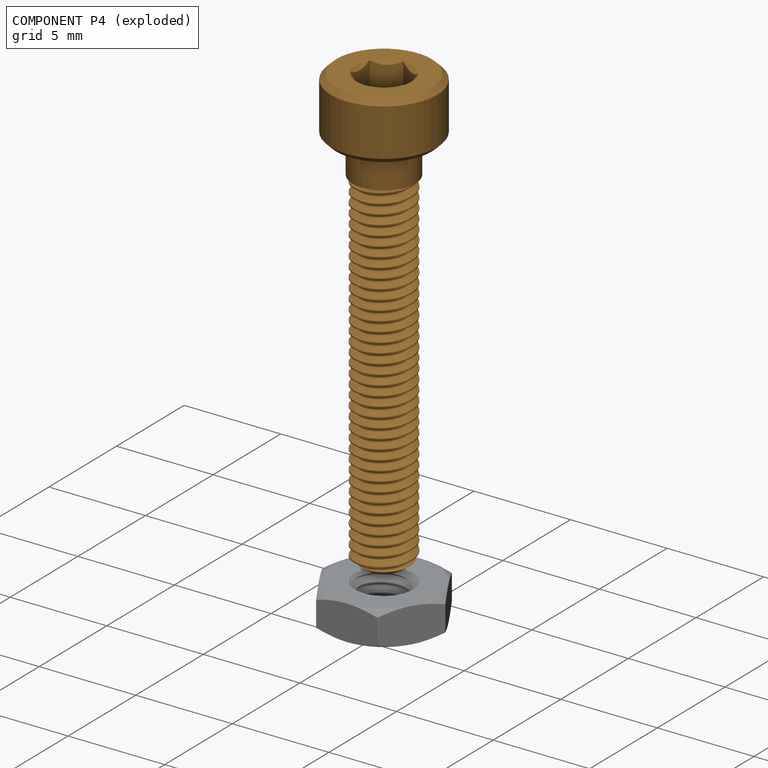
[diagram: component P4 — exploded]
COMPONENT P4 — geometry summary (no construction recipe available for this part):
  bounding box: 23.0 x 5.5 x 5.5 mm
  B-rep topology: 1 solid, 27 faces, 108 edges
  volume: 184 mm^3 (26% of its bounding box)
  symmetry: revolution-symmetric about the z axis through its bounding-box center
Held by: CYLINDRICAL mate "Nut and Screw" to P0; CYLINDRICAL mate "Nut and Screw" to P0.
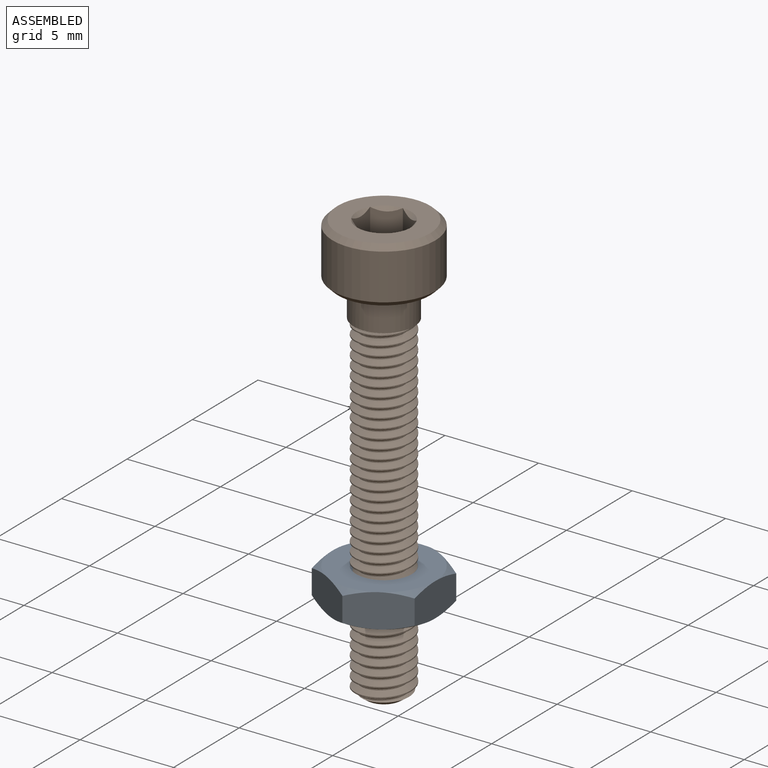
[diagram: subassembly S1 — assembled view]
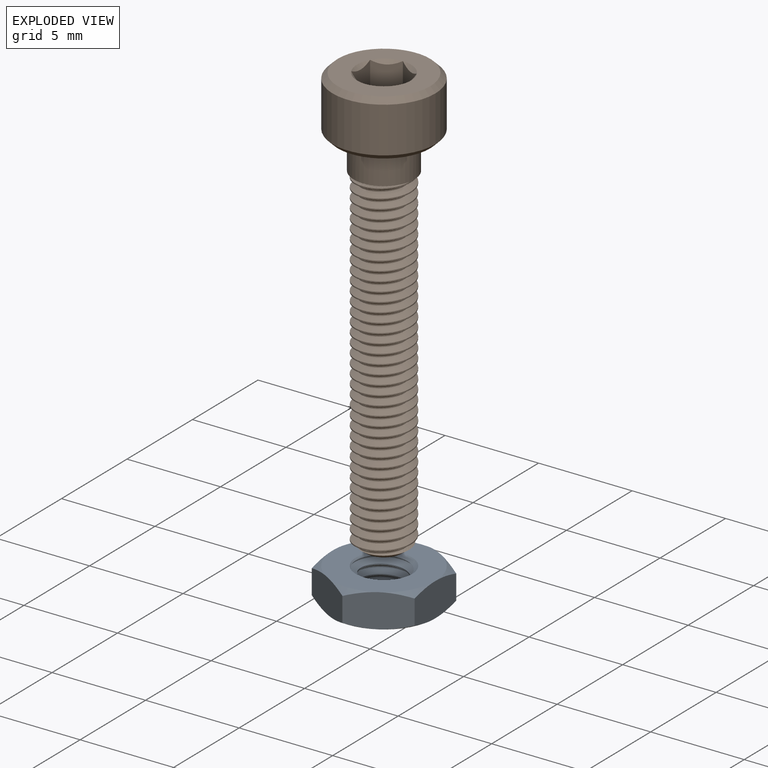
[diagram: subassembly S1 — exploded view]
SUBASSEMBLY S1 TOUR — 2 components, shown here in isolation at its own camera.

INTERNAL MATES
  1. CYLINDRICAL "Nut and Screw": P1 <-> P3, axis (0.000, 0.000, 1.000) through (-1.28, 35.75, 13.19) mm
  2. CYLINDRICAL "Nut and Screw": P1 <-> P3, axis (0.000, 0.000, 1.000) through (-1.28, 35.75, 13.19) mm

ASSEMBLY ORDER (within the subassembly)
  1. P1 — the base component [order heuristic]
  2. P3 [order heuristic]
Order-tag legend:
  [order heuristic] — this assembly is geometrically interlocked (no collision-free removal order exists), so components are listed in mate-graph order; insertion feasibility is not verified.
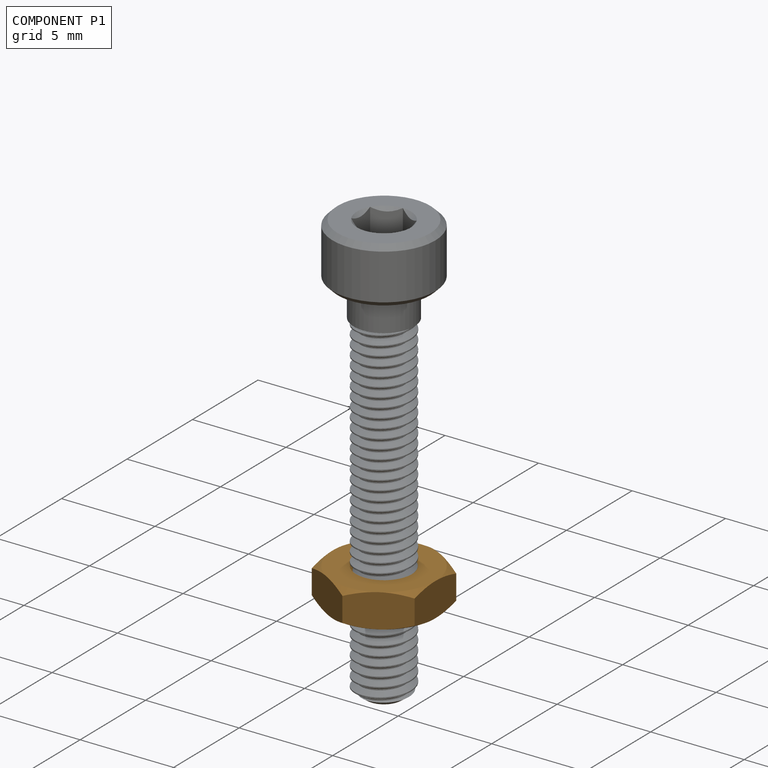
[diagram: component P1 — assembled]
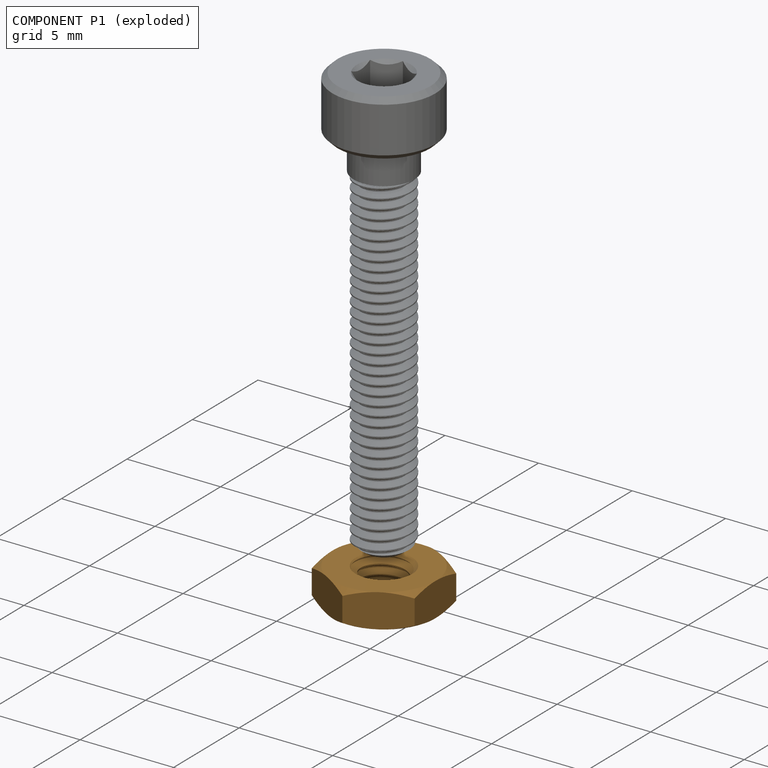
[diagram: component P1 — exploded]
COMPONENT P1 — geometry summary (no construction recipe available for this part):
  bounding box: 6.6 x 6.6 x 2.5 mm
  B-rep topology: 1 solid, 26 faces, 112 edges
  volume: 39 mm^3 (36% of its bounding box)
Held by: CYLINDRICAL mate "Nut and Screw" to P3; CYLINDRICAL mate "Nut and Screw" to P3.
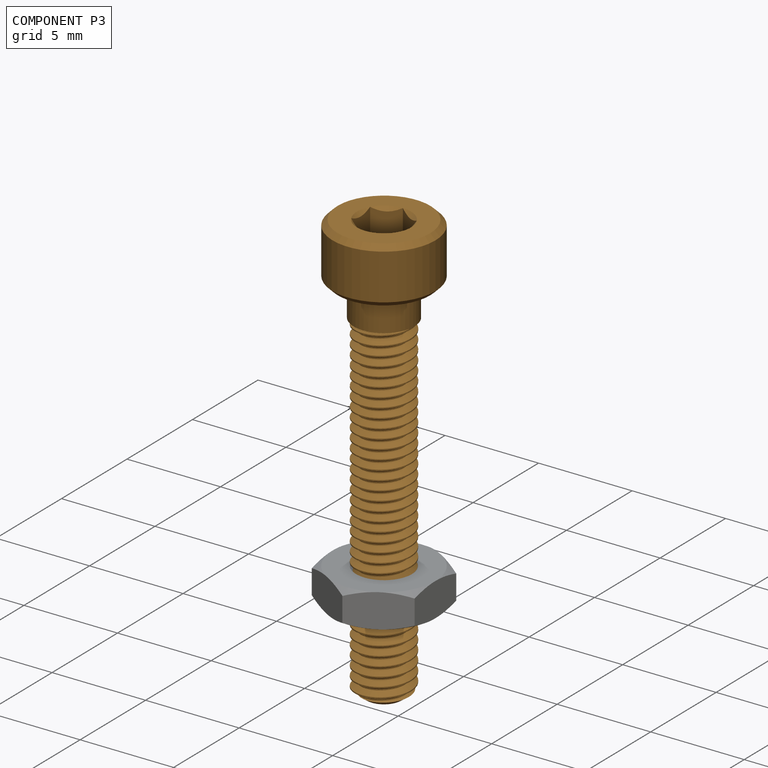
[diagram: component P3 — assembled]
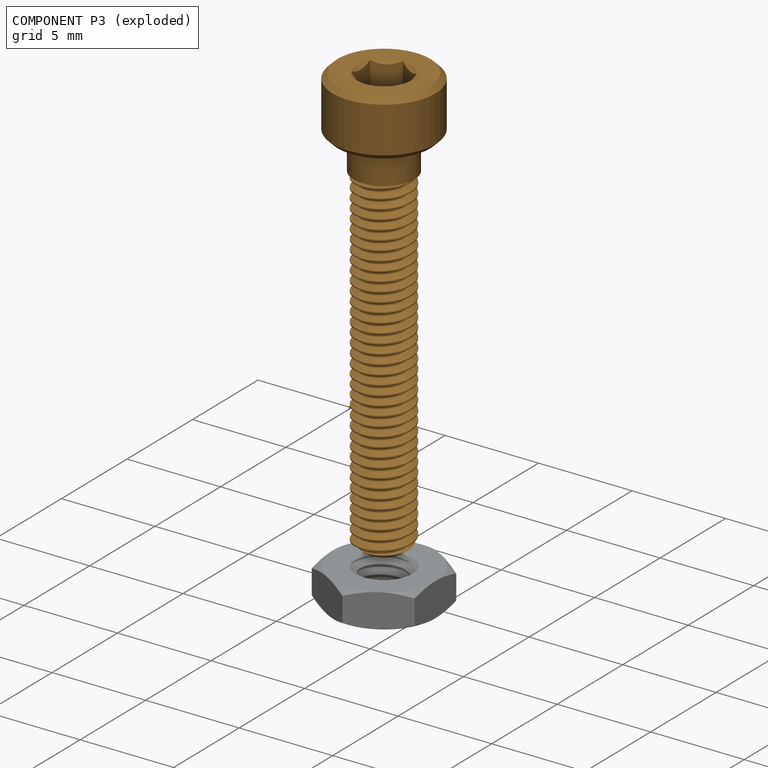
[diagram: component P3 — exploded]
COMPONENT P3 — geometry summary (no construction recipe available for this part):
  bounding box: 23.0 x 5.5 x 5.5 mm
  B-rep topology: 1 solid, 27 faces, 108 edges
  volume: 184 mm^3 (26% of its bounding box)
  symmetry: revolution-symmetric about the z axis through its bounding-box center
Held by: CYLINDRICAL mate "Nut and Screw" to P1; CYLINDRICAL mate "Nut and Screw" to P1.
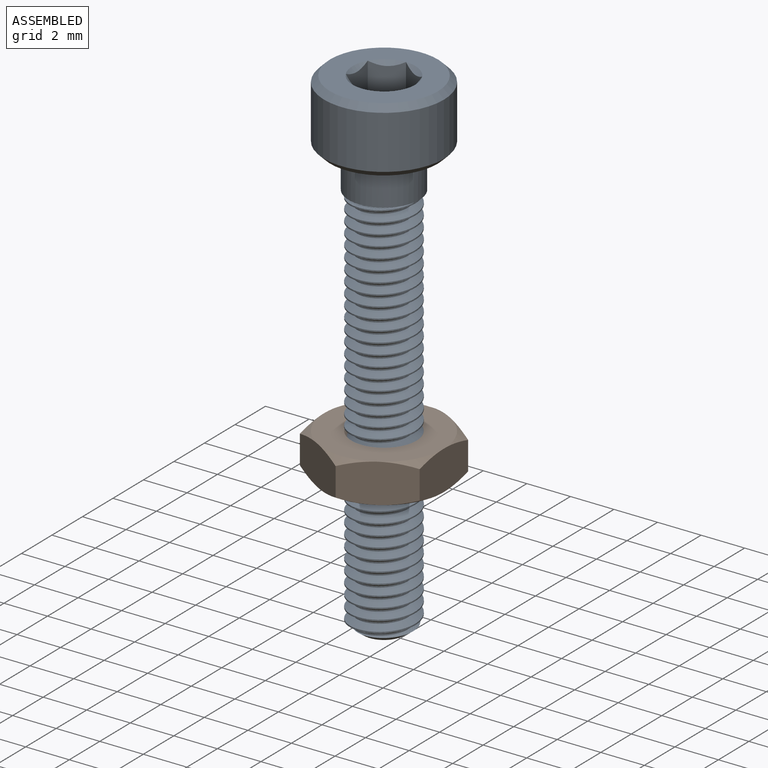
[diagram: subassembly S2 — assembled view]
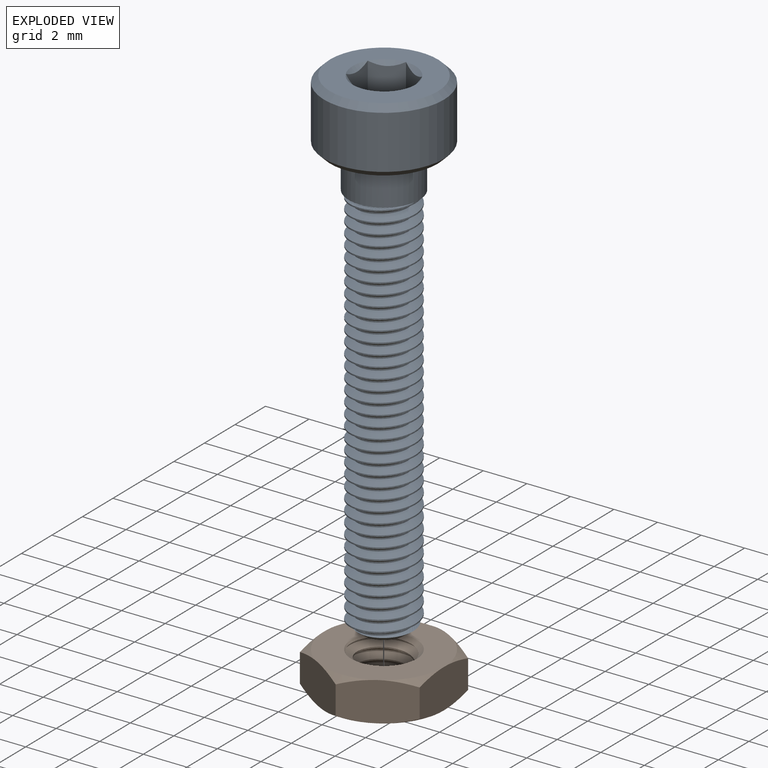
[diagram: subassembly S2 — exploded view]
SUBASSEMBLY S2 TOUR — 2 components, shown here in isolation at its own camera.

INTERNAL MATES
  1. CYLINDRICAL "Nut and Screw": P7 <-> P2, axis (0.000, 0.000, 1.000) through (-1.28, -34.97, 13.19) mm
  2. CYLINDRICAL "Nut and Screw": P7 <-> P2, axis (0.000, 0.000, 1.000) through (-1.28, -34.97, 13.19) mm

ASSEMBLY ORDER (within the subassembly)
  1. P2 — the base component [order heuristic]
  2. P7 [order heuristic]
Order-tag legend:
  [order heuristic] — this assembly is geometrically interlocked (no collision-free removal order exists), so components are listed in mate-graph order; insertion feasibility is not verified.
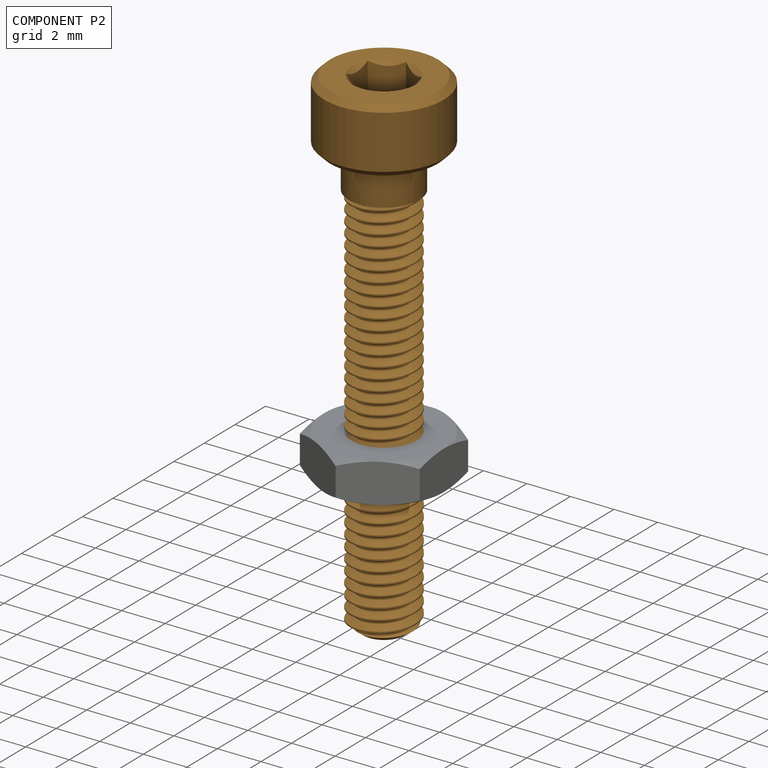
[diagram: component P2 — assembled]
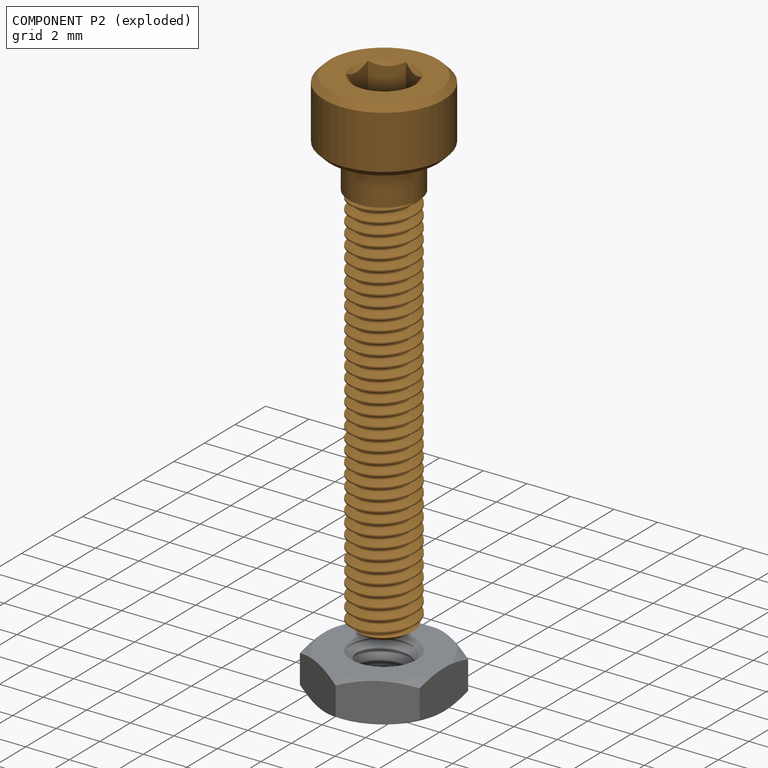
[diagram: component P2 — exploded]
COMPONENT P2 — geometry summary (no construction recipe available for this part):
  bounding box: 23.0 x 5.5 x 5.5 mm
  B-rep topology: 1 solid, 27 faces, 108 edges
  volume: 184 mm^3 (26% of its bounding box)
  symmetry: revolution-symmetric about the z axis through its bounding-box center
Held by: CYLINDRICAL mate "Nut and Screw" to P7; CYLINDRICAL mate "Nut and Screw" to P7.
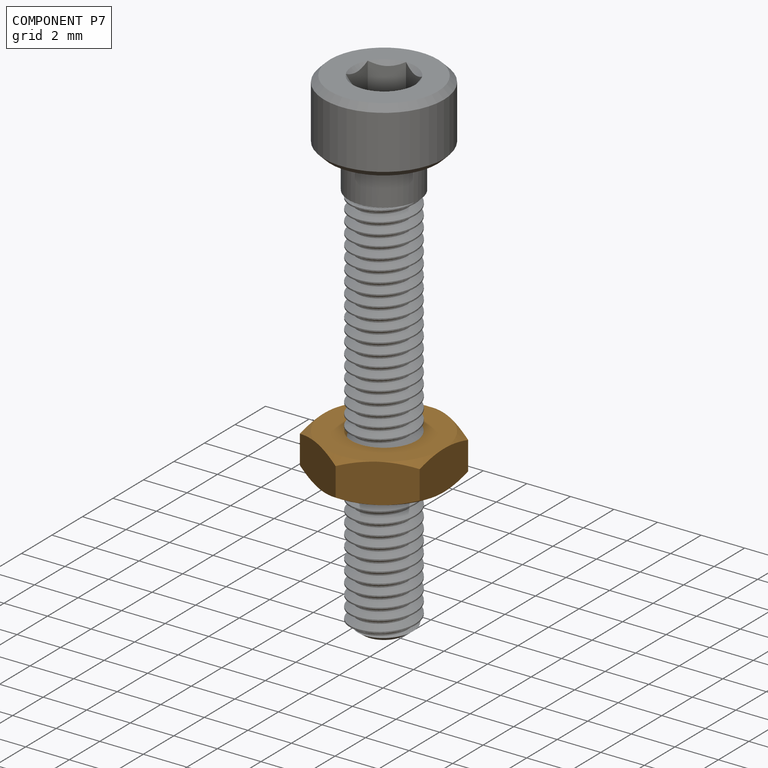
[diagram: component P7 — assembled]
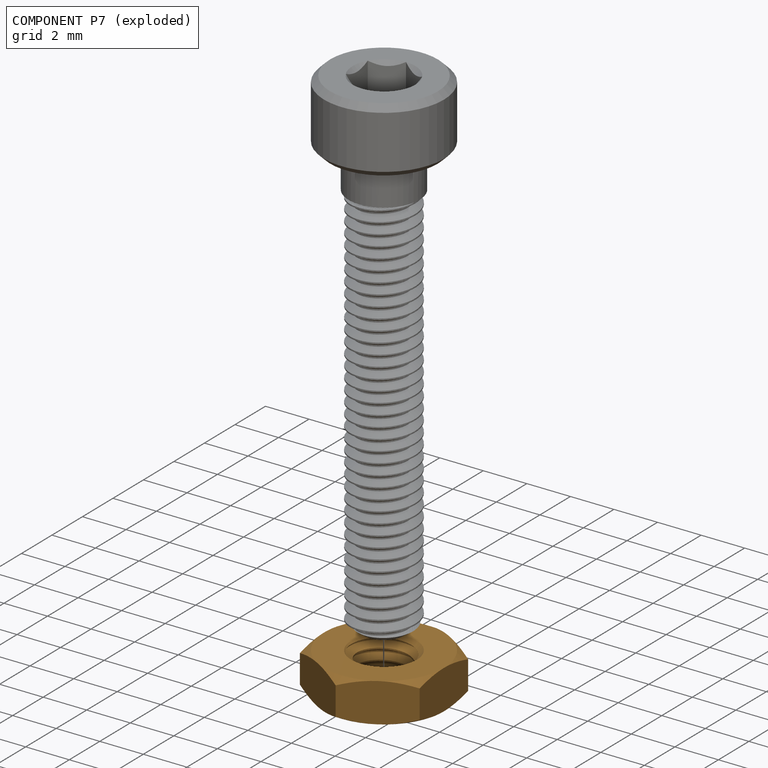
[diagram: component P7 — exploded]
COMPONENT P7 — geometry summary (no construction recipe available for this part):
  bounding box: 6.6 x 6.6 x 2.5 mm
  B-rep topology: 1 solid, 26 faces, 112 edges
  volume: 39 mm^3 (36% of its bounding box)
Held by: CYLINDRICAL mate "Nut and Screw" to P2; CYLINDRICAL mate "Nut and Screw" to P2.
